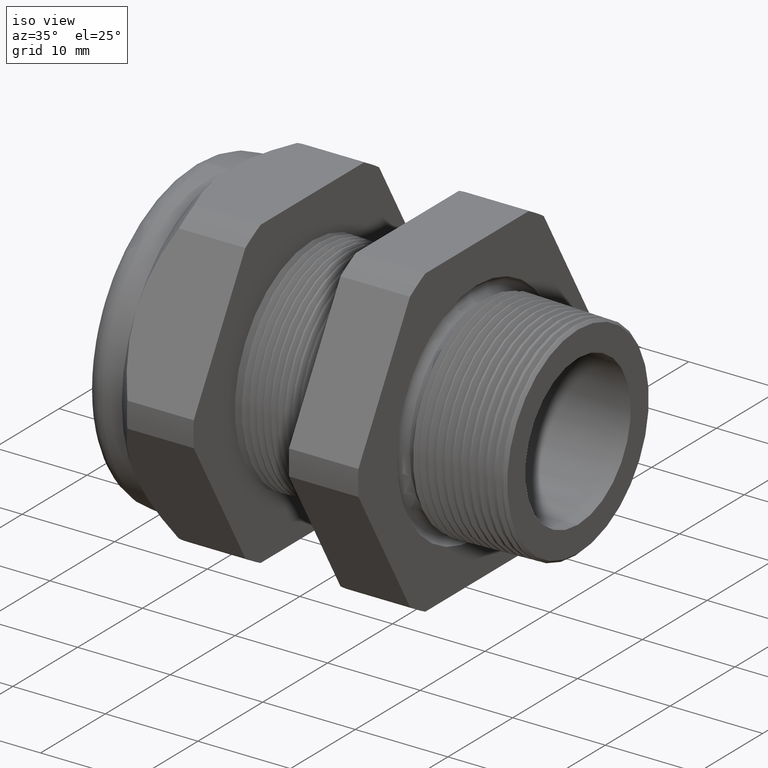
[diagram: clean part render]
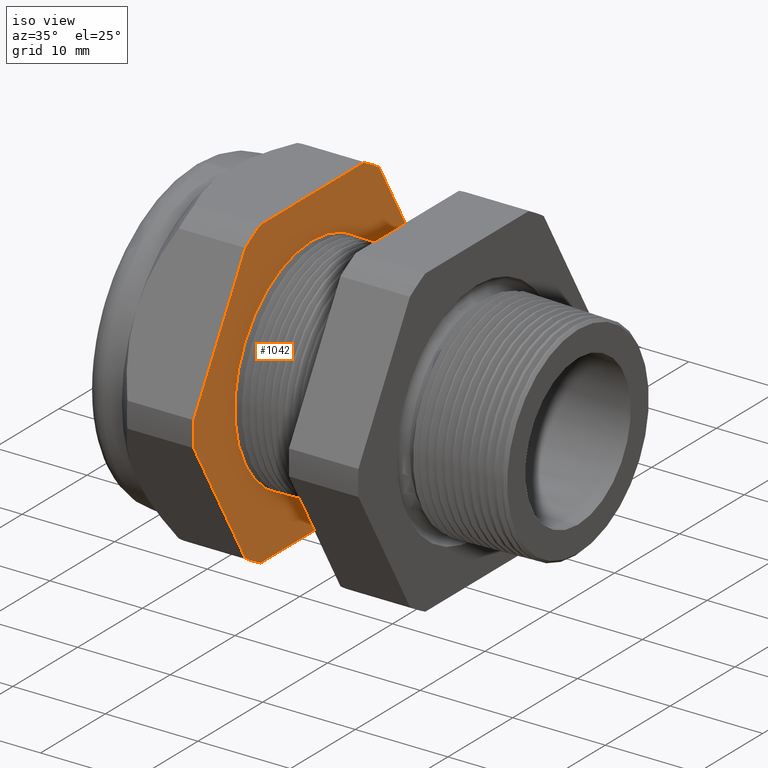
[diagram: same view with one face highlighted and labeled with its STEP entity id]
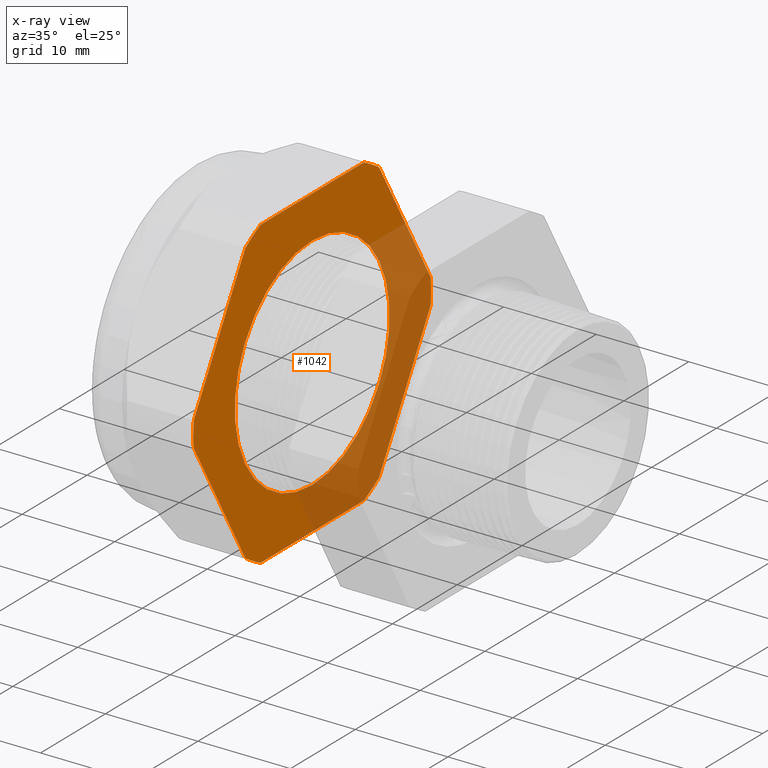
[diagram: x-ray of the same camera — body ghosted, the highlighted face saturated]
A machine part, iso view. The second image highlights one B-rep face of the part: STEP entity #1042.
The next image is the same camera in x-ray: the body ghosted, the highlighted face saturated — about 36% of this face is hidden behind the body in this view.
In plain terms, the highlighted planar face has unit normal (1, 0, 0).
Its self-contained STEP definition (entity closure, byte-faithful):
#30 = VERTEX_POINT ( 'NONE', #1742 ) ;
#44 = EDGE_CURVE ( 'NONE', #5578, #86, #1791, .T. ) ;
#63 = VERTEX_POINT ( 'NONE', #1807 ) ;
#70 = EDGE_CURVE ( 'NONE', #30, #5578, #1852, .T. ) ;
#86 = VERTEX_POINT ( 'NONE', #1877 ) ;
#173 = VERTEX_POINT ( 'NONE', #2046 ) ;
#191 = VERTEX_POINT ( 'NONE', #2172 ) ;
#309 = VERTEX_POINT ( 'NONE', #2417 ) ;
#312 = VERTEX_POINT ( 'NONE', #2411 ) ;
#313 = EDGE_CURVE ( 'NONE', #312, #309, #2410, .T. ) ;
#368 = VERTEX_POINT ( 'NONE', #2489 ) ;
#370 = EDGE_CURVE ( 'NONE', #173, #368, #2543, .T. ) ;
#854 = EDGE_CURVE ( 'NONE', #873, #891, #3499, .T. ) ;
#863 = EDGE_CURVE ( 'NONE', #368, #873, #3478, .T. ) ;
#868 = EDGE_CURVE ( 'NONE', #891, #63, #3466, .T. ) ;
#873 = VERTEX_POINT ( 'NONE', #3512 ) ;
#886 = EDGE_CURVE ( 'NONE', #63, #30, #3588, .T. ) ;
#891 = VERTEX_POINT ( 'NONE', #3569 ) ;
#1029 = ORIENTED_EDGE ( 'NONE', *, *, #886, .T. ) ;
#1030 = ORIENTED_EDGE ( 'NONE', *, *, #70, .T. ) ;
#1031 = ORIENTED_EDGE ( 'NONE', *, *, #44, .T. ) ;
#1032 = ORIENTED_EDGE ( 'NONE', *, *, #5594, .T. ) ;
#1033 = ORIENTED_EDGE ( 'NONE', *, *, #5447, .T. ) ;
#1034 = ORIENTED_EDGE ( 'NONE', *, *, #2144, .T. ) ;
#1035 = ORIENTED_EDGE ( 'NONE', *, *, #2165, .T. ) ;
#1036 = ORIENTED_EDGE ( 'NONE', *, *, #2136, .T. ) ;
#1042 = ADVANCED_FACE ( 'NONE', ( #3833, #3832 ), #3831, .T. ) ;
#1043 = EDGE_LOOP ( 'NONE', ( #1044, #1046 ) ) ;
#1044 = ORIENTED_EDGE ( 'NONE', *, *, #1045, .F. ) ;
#1045 = EDGE_CURVE ( 'NONE', #309, #312, #3826, .T. ) ;
#1046 = ORIENTED_EDGE ( 'NONE', *, *, #313, .F. ) ;
#1047 = EDGE_LOOP ( 'NONE', ( #1048, #1049, #1050, #1051, #1029, #1030, #1031, #1032, #1033, #1034, #1035, #1036 ) ) ;
#1048 = ORIENTED_EDGE ( 'NONE', *, *, #370, .T. ) ;
#1049 = ORIENTED_EDGE ( 'NONE', *, *, #863, .T. ) ;
#1050 = ORIENTED_EDGE ( 'NONE', *, *, #854, .T. ) ;
#1051 = ORIENTED_EDGE ( 'NONE', *, *, #868, .T. ) ;
#1742 = CARTESIAN_POINT ( 'NONE',  ( -1.010314960629921100, -0.3131489262315937400, 0.6500000000000000200 ) ) ;
#1788 = DIRECTION ( 'NONE',  ( 0.0000000000000000000, -0.4999999999999995600, -0.8660254037844388200 ) ) ;
#1789 = VECTOR ( 'NONE', #1788, 39.37007874015748900 ) ;
#1790 = CARTESIAN_POINT ( 'NONE',  ( -1.010314960629921100, -0.4454165124598855100, 0.5285159698893426800 ) ) ;
#1791 = LINE ( 'NONE', #1790, #1789 ) ;
#1807 = CARTESIAN_POINT ( 'NONE',  ( -1.010314960629921100, 0.3131489262315937900, 0.6499999999999999100 ) ) ;
#1848 = DIRECTION ( 'NONE',  ( 0.0000000000000000000, 0.0000000000000000000, -1.000000000000000000 ) ) ;
#1849 = DIRECTION ( 'NONE',  ( 1.000000000000000000, 0.0000000000000000000, 0.0000000000000000000 ) ) ;
#1850 = CARTESIAN_POINT ( 'NONE',  ( -1.010314960629921100, 0.0000000000000000000, 0.0000000000000000000 ) ) ;
#1851 = AXIS2_PLACEMENT_3D ( 'NONE', #1850, #1849, #1848 ) ;
#1852 = CIRCLE ( 'NONE', #1851, 0.7215000000000000300 ) ;
#1877 = CARTESIAN_POINT ( 'NONE',  ( -1.010314960629921100, -0.7194909755756819800, 0.05380507471562025900 ) ) ;
#2046 = CARTESIAN_POINT ( 'NONE',  ( -1.010314960629921100, 0.4063420493440886800, -0.5961949252843790100 ) ) ;
#2125 = VERTEX_POINT ( 'NONE', #4984 ) ;
#2136 = EDGE_CURVE ( 'NONE', #191, #173, #5027, .T. ) ;
#2144 = EDGE_CURVE ( 'NONE', #2151, #2125, #5009, .T. ) ;
#2151 = VERTEX_POINT ( 'NONE', #4998 ) ;
#2165 = EDGE_CURVE ( 'NONE', #2125, #191, #5037, .T. ) ;
#2172 = CARTESIAN_POINT ( 'NONE',  ( -1.010314960629921100, 0.3131489262315934100, -0.6500000000000001300 ) ) ;
#2406 = DIRECTION ( 'NONE',  ( 0.0000000000000000000, 0.0000000000000000000, -1.000000000000000000 ) ) ;
#2407 = DIRECTION ( 'NONE',  ( 1.000000000000000000, 0.0000000000000000000, 0.0000000000000000000 ) ) ;
#2408 = CARTESIAN_POINT ( 'NONE',  ( -1.010314960629921100, 0.0000000000000000000, 0.0000000000000000000 ) ) ;
#2409 = AXIS2_PLACEMENT_3D ( 'NONE', #2408, #2407, #2406 ) ;
#2410 = CIRCLE ( 'NONE', #2409, 0.4699999999999999700 ) ;
#2411 = CARTESIAN_POINT ( 'NONE',  ( -1.010314960629921100, 5.755839955992559700E-017, -0.4699999999999999700 ) ) ;
#2417 = CARTESIAN_POINT ( 'NONE',  ( -1.010314960629921100, 0.0000000000000000000, 0.4699999999999999700 ) ) ;
#2489 = CARTESIAN_POINT ( 'NONE',  ( -1.010314960629921100, 0.7194909755756818700, -0.05380507471562089000 ) ) ;
#2540 = DIRECTION ( 'NONE',  ( 0.0000000000000000000, 0.4999999999999996100, 0.8660254037844388200 ) ) ;
#2541 = VECTOR ( 'NONE', #2540, 39.37007874015748900 ) ;
#2542 = CARTESIAN_POINT ( 'NONE',  ( -1.010314960629921100, 0.6804165124598852100, -0.1214840301106568700 ) ) ;
#2543 = LINE ( 'NONE', #2542, #2541 ) ;
#3466 = CIRCLE ( 'NONE', #3525, 0.7215000000000000300 ) ;
#3474 = DIRECTION ( 'NONE',  ( 0.0000000000000000000, 0.0000000000000000000, -1.000000000000000000 ) ) ;
#3475 = DIRECTION ( 'NONE',  ( 1.000000000000000000, 0.0000000000000000000, 0.0000000000000000000 ) ) ;
#3476 = CARTESIAN_POINT ( 'NONE',  ( -1.010314960629921100, 0.0000000000000000000, 0.0000000000000000000 ) ) ;
#3477 = AXIS2_PLACEMENT_3D ( 'NONE', #3476, #3475, #3474 ) ;
#3478 = CIRCLE ( 'NONE', #3477, 0.7214999999999999200 ) ;
#3496 = DIRECTION ( 'NONE',  ( 0.0000000000000000000, -0.4999999999999998900, 0.8660254037844386000 ) ) ;
#3497 = VECTOR ( 'NONE', #3496, 39.37007874015748100 ) ;
#3498 = CARTESIAN_POINT ( 'NONE',  ( -1.010314960629921100, 0.6804165124598855500, 0.1214840301106571000 ) ) ;
#3499 = LINE ( 'NONE', #3498, #3497 ) ;
#3512 = CARTESIAN_POINT ( 'NONE',  ( -1.010314960629921100, 0.7194909755756817600, 0.05380507471562173000 ) ) ;
#3522 = DIRECTION ( 'NONE',  ( 0.0000000000000000000, 0.0000000000000000000, -1.000000000000000000 ) ) ;
#3523 = DIRECTION ( 'NONE',  ( 1.000000000000000000, 0.0000000000000000000, 0.0000000000000000000 ) ) ;
#3524 = CARTESIAN_POINT ( 'NONE',  ( -1.010314960629921100, 0.0000000000000000000, 0.0000000000000000000 ) ) ;
#3525 = AXIS2_PLACEMENT_3D ( 'NONE', #3524, #3523, #3522 ) ;
#3569 = CARTESIAN_POINT ( 'NONE',  ( -1.010314960629921100, 0.4063420493440890700, 0.5961949252843787800 ) ) ;
#3580 = VECTOR ( 'NONE', #3586, 39.37007874015748100 ) ;
#3586 = DIRECTION ( 'NONE',  ( 0.0000000000000000000, -1.000000000000000000, 0.0000000000000000000 ) ) ;
#3587 = CARTESIAN_POINT ( 'NONE',  ( -1.010314960629921100, 0.4699999999999999700, 0.6499999999999999100 ) ) ;
#3588 = LINE ( 'NONE', #3587, #3580 ) ;
#3822 = DIRECTION ( 'NONE',  ( 0.0000000000000000000, 0.0000000000000000000, -1.000000000000000000 ) ) ;
#3823 = DIRECTION ( 'NONE',  ( 1.000000000000000000, 0.0000000000000000000, 0.0000000000000000000 ) ) ;
#3824 = CARTESIAN_POINT ( 'NONE',  ( -1.010314960629921100, 0.0000000000000000000, 0.0000000000000000000 ) ) ;
#3825 = AXIS2_PLACEMENT_3D ( 'NONE', #3824, #3823, #3822 ) ;
#3826 = CIRCLE ( 'NONE', #3825, 0.4699999999999999700 ) ;
#3827 = DIRECTION ( 'NONE',  ( 0.0000000000000000000, 0.0000000000000000000, -1.000000000000000000 ) ) ;
#3828 = DIRECTION ( 'NONE',  ( 1.000000000000000000, 0.0000000000000000000, 0.0000000000000000000 ) ) ;
#3829 = CARTESIAN_POINT ( 'NONE',  ( -1.010314960629921100, 0.4699999999999999700, 0.0000000000000000000 ) ) ;
#3830 = AXIS2_PLACEMENT_3D ( 'NONE', #3829, #3828, #3827 ) ;
#3831 = PLANE ( 'NONE',  #3830 ) ;
#3832 = FACE_OUTER_BOUND ( 'NONE', #1047, .T. ) ;
#3833 = FACE_BOUND ( 'NONE', #1043, .T. ) ;
#4970 = CARTESIAN_POINT ( 'NONE',  ( -1.010314960629921100, 0.0000000000000000000, 0.0000000000000000000 ) ) ;
#4984 = CARTESIAN_POINT ( 'NONE',  ( -1.010314960629921100, -0.3131489262315934100, -0.6500000000000001300 ) ) ;
#4998 = CARTESIAN_POINT ( 'NONE',  ( -1.010314960629921100, -0.4063420493440881300, -0.5961949252843793400 ) ) ;
#5005 = DIRECTION ( 'NONE',  ( 0.0000000000000000000, 0.0000000000000000000, -1.000000000000000000 ) ) ;
#5006 = DIRECTION ( 'NONE',  ( 1.000000000000000000, 0.0000000000000000000, 0.0000000000000000000 ) ) ;
#5007 = CARTESIAN_POINT ( 'NONE',  ( -1.010314960629921100, 0.0000000000000000000, 0.0000000000000000000 ) ) ;
#5008 = AXIS2_PLACEMENT_3D ( 'NONE', #5007, #5006, #5005 ) ;
#5009 = CIRCLE ( 'NONE', #5008, 0.7215000000000000300 ) ;
#5024 = DIRECTION ( 'NONE',  ( 0.0000000000000000000, 0.0000000000000000000, -1.000000000000000000 ) ) ;
#5025 = DIRECTION ( 'NONE',  ( 1.000000000000000000, 0.0000000000000000000, 0.0000000000000000000 ) ) ;
#5026 = AXIS2_PLACEMENT_3D ( 'NONE', #4970, #5025, #5024 ) ;
#5027 = CIRCLE ( 'NONE', #5026, 0.7215000000000000300 ) ;
#5031 = DIRECTION ( 'NONE',  ( 0.0000000000000000000, 1.000000000000000000, 0.0000000000000000000 ) ) ;
#5032 = VECTOR ( 'NONE', #5031, 39.37007874015748100 ) ;
#5033 = CARTESIAN_POINT ( 'NONE',  ( -1.010314960629921100, 0.4699999999999999700, -0.6500000000000001300 ) ) ;
#5037 = LINE ( 'NONE', #5033, #5032 ) ;
#5093 = CARTESIAN_POINT ( 'NONE',  ( -1.010314960629921100, -0.7194909755756819800, -0.05380507471562082100 ) ) ;
#5094 = DIRECTION ( 'NONE',  ( 0.0000000000000000000, 0.5000000000000001100, -0.8660254037844386000 ) ) ;
#5095 = VECTOR ( 'NONE', #5094, 39.37007874015748100 ) ;
#5096 = CARTESIAN_POINT ( 'NONE',  ( -1.010314960629921100, -0.4454165124598852300, -0.5285159698893432400 ) ) ;
#5097 = LINE ( 'NONE', #5096, #5095 ) ;
#5165 = CARTESIAN_POINT ( 'NONE',  ( -1.010314960629921100, -0.4063420493440885700, 0.5961949252843791200 ) ) ;
#5201 = DIRECTION ( 'NONE',  ( 0.0000000000000000000, 0.0000000000000000000, -1.000000000000000000 ) ) ;
#5202 = DIRECTION ( 'NONE',  ( 1.000000000000000000, 0.0000000000000000000, 0.0000000000000000000 ) ) ;
#5203 = CARTESIAN_POINT ( 'NONE',  ( -1.010314960629921100, 0.0000000000000000000, 0.0000000000000000000 ) ) ;
#5204 = AXIS2_PLACEMENT_3D ( 'NONE', #5203, #5202, #5201 ) ;
#5205 = CIRCLE ( 'NONE', #5204, 0.7215000000000000300 ) ;
#5447 = EDGE_CURVE ( 'NONE', #5557, #2151, #5097, .T. ) ;
#5557 = VERTEX_POINT ( 'NONE', #5093 ) ;
#5578 = VERTEX_POINT ( 'NONE', #5165 ) ;
#5594 = EDGE_CURVE ( 'NONE', #86, #5557, #5205, .T. ) ;